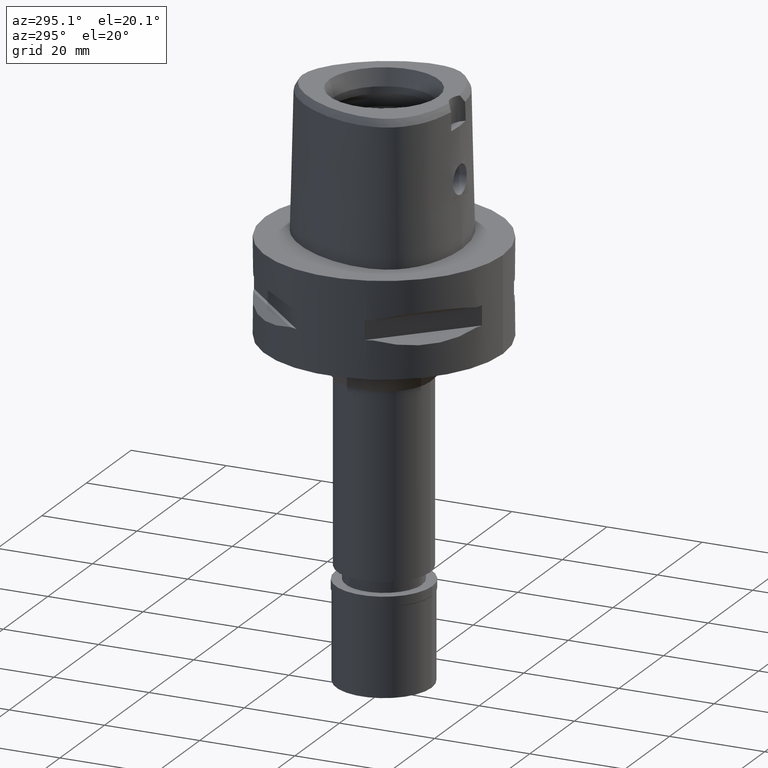
[diagram: clean part render]
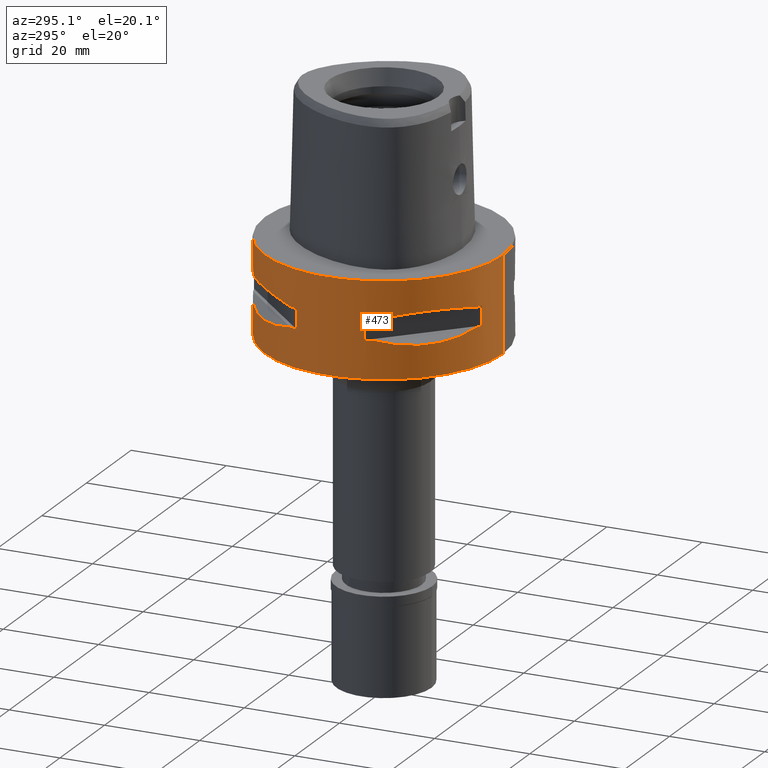
[diagram: same view with one face highlighted and labeled with its STEP entity id]
A machine part, auxiliary view. The second image highlights one B-rep face of the part: STEP entity #473.
In plain terms, the highlighted cylindrical surface (partial cylindrical patch) has radius 25 mm, axis along (0, 0, -1).
Its self-contained STEP definition (entity closure, byte-faithful):
#55 = EDGE_CURVE ( 'NONE', #2540, #2923, #4088, .T. ) ;
#127 = ORIENTED_EDGE ( 'NONE', *, *, #4684, .F. ) ;
#142 = CARTESIAN_POINT ( 'NONE',  ( -22.58788056562029922, -10.78455809745187111, -12.56798337782941744 ) ) ;
#151 = ORIENTED_EDGE ( 'NONE', *, *, #3380, .T. ) ;
#188 = CARTESIAN_POINT ( 'NONE',  ( -23.95277699797999915, 7.159921374235000080, -12.05000000000000071 ) ) ;
#189 = CARTESIAN_POINT ( 'NONE',  ( -16.07509500017260251, -19.18226349640280048, -13.33749867751863327 ) ) ;
#197 = CARTESIAN_POINT ( 'NONE',  ( -11.99631184318435828, 22.00754773654067264, -7.175632472871786405 ) ) ;
#222 = CARTESIAN_POINT ( 'NONE',  ( -7.159921374235000080, -23.95277699797999915, -12.05000000000000071 ) ) ;
#260 = CARTESIAN_POINT ( 'NONE',  ( -12.89853354822446718, 21.41803043592210543, -12.95342092614171570 ) ) ;
#264 = AXIS2_PLACEMENT_3D ( 'NONE', #4758, #1338, #3562 ) ;
#289 = DIRECTION ( 'NONE',  ( 0.0000000000000000000, 0.0000000000000000000, -1.000000000000000000 ) ) ;
#294 = FACE_BOUND ( 'NONE', #3579, .T. ) ;
#312 = DIRECTION ( 'NONE',  ( -0.2863968549694120291, -0.9581110799190402094, 0.0000000000000000000 ) ) ;
#328 = CARTESIAN_POINT ( 'NONE',  ( -23.45715880140000209, 8.646484890751999330, -7.949999999998999201 ) ) ;
#370 = DIRECTION ( 'NONE',  ( 0.0000000000000000000, -1.000000000000000000, 0.0000000000000000000 ) ) ;
#449 = VERTEX_POINT ( 'NONE', #690 ) ;
#473 = ADVANCED_FACE ( 'NONE', ( #3810, #294, #4857 ), #3409, .T. ) ;
#512 = CARTESIAN_POINT ( 'NONE',  ( -23.45715880140000209, -8.646484890756999775, -12.05000000000000071 ) ) ;
#519 = CARTESIAN_POINT ( 'NONE',  ( -14.22535762327708397, -20.56020460723788901, -13.14488865845220289 ) ) ;
#525 = CARTESIAN_POINT ( 'NONE',  ( -20.06074199769975763, 15.02698525043419231, -6.733118915137212390 ) ) ;
#529 = VERTEX_POINT ( 'NONE', #3304 ) ;
#582 = CARTESIAN_POINT ( 'NONE',  ( -13.41274673326554101, 21.09754014382029297, -13.03250796600789663 ) ) ;
#588 = CARTESIAN_POINT ( 'NONE',  ( -23.95277699797999915, 7.159921374230999724, -12.05000000000000071 ) ) ;
#591 = AXIS2_PLACEMENT_3D ( 'NONE', #2981, #3007, #2568 ) ;
#603 = CARTESIAN_POINT ( 'NONE',  ( 0.0000000000000000000, 1.274857317911999787E-14, -7.950000000000000178 ) ) ;
#609 = EDGE_CURVE ( 'NONE', #4574, #3774, #675, .T. ) ;
#628 = VERTEX_POINT ( 'NONE', #3708 ) ;
#629 = VERTEX_POINT ( 'NONE', #1084 ) ;
#638 = CARTESIAN_POINT ( 'NONE',  ( -13.24197703503622137, 21.20561591939551249, -13.00691327926188201 ) ) ;
#643 = EDGE_CURVE ( 'NONE', #449, #629, #3704, .T. ) ;
#675 = CIRCLE ( 'NONE', #591, 24.99999999999999645 ) ;
#683 = AXIS2_PLACEMENT_3D ( 'NONE', #3145, #1202, #2291 ) ;
#685 = CARTESIAN_POINT ( 'NONE',  ( -11.99636231264437747, -22.00752022556847720, -7.175618606703324964 ) ) ;
#690 = CARTESIAN_POINT ( 'NONE',  ( 0.0000000000000000000, -25.00000000000000000, 0.0000000000000000000 ) ) ;
#755 = DIRECTION ( 'NONE',  ( 0.0000000000000000000, 0.0000000000000000000, -1.000000000000000000 ) ) ;
#778 = CARTESIAN_POINT ( 'NONE',  ( 0.0000000000000000000, 1.274857317911999787E-14, -7.950000000000000178 ) ) ;
#820 = DIRECTION ( 'NONE',  ( -0.9382863520558295534, 0.3458593956303108730, 0.0000000000000000000 ) ) ;
#886 = CARTESIAN_POINT ( 'NONE',  ( -21.82791133048418786, -12.20403021317722292, -12.83722430138600323 ) ) ;
#890 = CARTESIAN_POINT ( 'NONE',  ( -16.42437865147239151, 18.93096040785500378, -6.622505547239577517 ) ) ;
#916 = CARTESIAN_POINT ( 'NONE',  ( -12.03062603421342125, -21.99328990740118428, -12.83394786307044555 ) ) ;
#958 = CARTESIAN_POINT ( 'NONE',  ( -7.159921374230999724, 23.95277699797999915, -12.05000000000000071 ) ) ;
#964 = CARTESIAN_POINT ( 'NONE',  ( -21.41803043592453548, -12.89853354821786446, -12.95342092614003171 ) ) ;
#984 = ORIENTED_EDGE ( 'NONE', *, *, #2564, .F. ) ;
#1033 = CARTESIAN_POINT ( 'NONE',  ( -23.45715880140000209, 8.646484890751999330, -12.05000000000000071 ) ) ;
#1056 = CIRCLE ( 'NONE', #2423, 25.00000000000001066 ) ;
#1083 = CARTESIAN_POINT ( 'NONE',  ( -13.48572973711170953, 21.05082155772122832, -13.04323036965318039 ) ) ;
#1084 = CARTESIAN_POINT ( 'NONE',  ( 0.0000000000000000000, 25.00000000000000000, 0.0000000000000000000 ) ) ;
#1131 = EDGE_CURVE ( 'NONE', #4690, #2923, #3139, .T. ) ;
#1140 = CIRCLE ( 'NONE', #264, 25.00000000000000000 ) ;
#1178 = DIRECTION ( 'NONE',  ( 0.0000000000000000000, 0.0000000000000000000, -1.000000000000000000 ) ) ;
#1202 = DIRECTION ( 'NONE',  ( 0.0000000000000000000, 0.0000000000000000000, 1.000000000000000000 ) ) ;
#1237 = CARTESIAN_POINT ( 'NONE',  ( -7.159921374230999724, -23.95277699797999915, -7.950000000000000178 ) ) ;
#1238 = DIRECTION ( 'NONE',  ( 0.0000000000000000000, 0.0000000000000000000, 1.000000000000000000 ) ) ;
#1248 = ORIENTED_EDGE ( 'NONE', *, *, #609, .T. ) ;
#1256 = DIRECTION ( 'NONE',  ( -0.3458593956303108730, -0.9382863520558295534, 0.0000000000000000000 ) ) ;
#1265 = CARTESIAN_POINT ( 'NONE',  ( -8.646484890751999330, 23.45715880140000209, -7.949999999998999201 ) ) ;
#1317 = CARTESIAN_POINT ( 'NONE',  ( -13.67544437571023153, -20.92801700160370970, -13.07054629644085786 ) ) ;
#1338 = DIRECTION ( 'NONE',  ( 0.0000000000000000000, 0.0000000000000000000, 1.000000000000000000 ) ) ;
#1368 = EDGE_CURVE ( 'NONE', #628, #2718, #2685, .T. ) ;
#1379 = VECTOR ( 'NONE', #1238, 1000.000000000000000 ) ;
#1393 = B_SPLINE_CURVE_WITH_KNOTS ( 'NONE', 3,
 ( #3325, #2583, #2507, #2533, #4108, #1407, #2483, #685, #4077, #4054 ),
 .UNSPECIFIED., .F., .F.,
 ( 4, 2, 2, 2, 4 ),
 ( 0.0000000000000000000, 0.2499999999999998335, 0.4999999999999996669, 0.7499999999999997780, 1.000000000000000000 ),
 .UNSPECIFIED. ) ;
#1407 = CARTESIAN_POINT ( 'NONE',  ( -16.42437865151179821, -18.93096040781555445, -6.622496303226937719 ) ) ;
#1414 = CARTESIAN_POINT ( 'NONE',  ( -20.97251445226615019, 13.60713573002994181, -13.06082541678091324 ) ) ;
#1439 = DIRECTION ( 'NONE',  ( 0.0000000000000000000, -1.000000000000000000, 0.0000000000000000000 ) ) ;
#1460 = CARTESIAN_POINT ( 'NONE',  ( -20.77616787492827655, 13.90573822668830140, -13.10257122103331362 ) ) ;
#1461 = EDGE_CURVE ( 'NONE', #3009, #529, #4267, .T. ) ;
#1488 = ORIENTED_EDGE ( 'NONE', *, *, #3081, .F. ) ;
#1513 = ORIENTED_EDGE ( 'NONE', *, *, #2448, .T. ) ;
#1591 = CARTESIAN_POINT ( 'NONE',  ( 0.0000000000000000000, 25.00000000000000000, -20.00000000000000000 ) ) ;
#1696 = CARTESIAN_POINT ( 'NONE',  ( -23.13678124605149833, -9.515641234297431694, -12.27403800212630891 ) ) ;
#1702 = EDGE_CURVE ( 'NONE', #628, #529, #4249, .T. ) ;
#1703 = ORIENTED_EDGE ( 'NONE', *, *, #2984, .T. ) ;
#1721 = CARTESIAN_POINT ( 'NONE',  ( -13.60713573003076249, -20.97251445226584110, -13.06082541678113174 ) ) ;
#1745 = CARTESIAN_POINT ( 'NONE',  ( -21.00321793043546847, -13.55971422200801157, -13.05400030967367364 ) ) ;
#1785 = CARTESIAN_POINT ( 'NONE',  ( -13.53433973752455621, 21.01958685664031989, -13.05032380590174235 ) ) ;
#1819 = CARTESIAN_POINT ( 'NONE',  ( -10.78455809746692928, 22.58788056561475344, -12.56798337783328634 ) ) ;
#1836 = VERTEX_POINT ( 'NONE', #1852 ) ;
#1852 = CARTESIAN_POINT ( 'NONE',  ( -8.646484890751999330, 23.45715880140000209, -7.949999999998999201 ) ) ;
#1859 = ORIENTED_EDGE ( 'NONE', *, *, #2539, .T. ) ;
#1866 = CARTESIAN_POINT ( 'NONE',  ( 0.0000000000000000000, 1.274857317911999787E-14, 4.100000000000000533 ) ) ;
#1869 = VECTOR ( 'NONE', #2170, 1000.000000000000000 ) ;
#1937 = CARTESIAN_POINT ( 'NONE',  ( 0.0000000000000000000, -25.00000000000000000, -20.00000000000000000 ) ) ;
#2023 = AXIS2_PLACEMENT_3D ( 'NONE', #2488, #755, #312 ) ;
#2033 = CIRCLE ( 'NONE', #4821, 24.99999999999999645 ) ;
#2046 = CARTESIAN_POINT ( 'NONE',  ( -10.38516041956038016, -22.81626994452193458, -12.49816953211165860 ) ) ;
#2063 = DIRECTION ( 'NONE',  ( 0.0000000000000000000, 0.0000000000000000000, 1.000000000000000000 ) ) ;
#2090 = CARTESIAN_POINT ( 'NONE',  ( -14.85488513037629943, -20.11654071403241417, -13.22076716108376360 ) ) ;
#2141 = CARTESIAN_POINT ( 'NONE',  ( -13.55971422200804888, 21.00321793043550755, -13.05400030967368785 ) ) ;
#2164 = CARTESIAN_POINT ( 'NONE',  ( -19.18226349636000805, 16.07509500021993887, -13.33749867752047358 ) ) ;
#2170 = DIRECTION ( 'NONE',  ( 0.0000000000000000000, 0.0000000000000000000, -1.000000000000000000 ) ) ;
#2235 = ORIENTED_EDGE ( 'NONE', *, *, #1368, .T. ) ;
#2244 = VERTEX_POINT ( 'NONE', #2687 ) ;
#2289 = VERTEX_POINT ( 'NONE', #222 ) ;
#2291 = DIRECTION ( 'NONE',  ( -0.9581110799190402094, -0.2863968549694120291, 0.0000000000000000000 ) ) ;
#2328 = CARTESIAN_POINT ( 'NONE',  ( -7.159921374235000080, 23.95277699797999915, -7.950000000000000178 ) ) ;
#2410 = EDGE_CURVE ( 'NONE', #1836, #4198, #4190, .T. ) ;
#2415 = EDGE_LOOP ( 'NONE', ( #4869, #3482, #4370, #1859 ) ) ;
#2420 = CARTESIAN_POINT ( 'NONE',  ( -21.09754014382098930, -13.41274673326371136, -13.03250796600744721 ) ) ;
#2423 = AXIS2_PLACEMENT_3D ( 'NONE', #778, #3040, #820 ) ;
#2427 = CARTESIAN_POINT ( 'NONE',  ( -22.00752022560863352, 11.99636231257077057, -7.175618606723545234 ) ) ;
#2448 = EDGE_CURVE ( 'NONE', #4198, #3266, #1056, .T. ) ;
#2454 = CARTESIAN_POINT ( 'NONE',  ( -13.90573822667720982, -20.77616787493829875, -13.10257122103289262 ) ) ;
#2472 = CARTESIAN_POINT ( 'NONE',  ( -23.45715880140000209, -8.646484890751999330, -7.949999999998999201 ) ) ;
#2483 = CARTESIAN_POINT ( 'NONE',  ( -15.02698525050127465, -20.06074199764947963, -6.733118915116993008 ) ) ;
#2488 = CARTESIAN_POINT ( 'NONE',  ( 0.0000000000000000000, 1.274857317911999787E-14, -12.05000000000000071 ) ) ;
#2494 = CARTESIAN_POINT ( 'NONE',  ( -7.159921374230999724, -23.95277699797999915, -12.05000000000000071 ) ) ;
#2507 = CARTESIAN_POINT ( 'NONE',  ( -22.00754773658078634, -11.99631184311072651, -7.175632472892017333 ) ) ;
#2512 = VECTOR ( 'NONE', #3310, 1000.000000000000000 ) ;
#2516 = CARTESIAN_POINT ( 'NONE',  ( 0.0000000000000000000, -25.00000000000000000, 0.0000000000000000000 ) ) ;
#2533 = CARTESIAN_POINT ( 'NONE',  ( -20.06077645874710669, -15.02693924547572557, -6.733132781305682713 ) ) ;
#2536 = DIRECTION ( 'NONE',  ( -0.3458593956303108730, 0.9382863520558295534, 0.0000000000000000000 ) ) ;
#2539 = EDGE_CURVE ( 'NONE', #629, #4880, #3516, .T. ) ;
#2540 = VERTEX_POINT ( 'NONE', #2328 ) ;
#2559 = EDGE_CURVE ( 'NONE', #3009, #2935, #3999, .T. ) ;
#2564 = EDGE_CURVE ( 'NONE', #2289, #4477, #3204, .T. ) ;
#2567 = EDGE_CURVE ( 'NONE', #4880, #3915, #1140, .T. ) ;
#2568 = DIRECTION ( 'NONE',  ( -0.9581110799190402094, 0.2863968549694120291, 0.0000000000000000000 ) ) ;
#2583 = CARTESIAN_POINT ( 'NONE',  ( -22.82438450745432235, -10.36314631860613389, -7.507504930525400688 ) ) ;
#2591 = CARTESIAN_POINT ( 'NONE',  ( -20.88268233905774807, 13.74471461762043312, -13.08031795579756640 ) ) ;
#2595 = AXIS2_PLACEMENT_3D ( 'NONE', #3783, #2621, #370 ) ;
#2620 = CARTESIAN_POINT ( 'NONE',  ( -8.646484890756999775, 23.45715880140000209, -12.05000000000000071 ) ) ;
#2621 = DIRECTION ( 'NONE',  ( 0.0000000000000000000, 0.0000000000000000000, -1.000000000000000000 ) ) ;
#2678 = CIRCLE ( 'NONE', #3466, 25.00000000000001066 ) ;
#2685 = CIRCLE ( 'NONE', #683, 24.99999999999999645 ) ;
#2687 = CARTESIAN_POINT ( 'NONE',  ( -8.646484890751999330, -23.45715880140000209, -7.949999999998999201 ) ) ;
#2706 = CARTESIAN_POINT ( 'NONE',  ( 0.0000000000000000000, 25.00000000000000000, 0.0000000000000000000 ) ) ;
#2718 = VERTEX_POINT ( 'NONE', #2472 ) ;
#2751 = VECTOR ( 'NONE', #3274, 1000.000000000000000 ) ;
#2794 = CARTESIAN_POINT ( 'NONE',  ( -18.93096040785499667, 16.42437865147239506, -6.622496303240421156 ) ) ;
#2844 = CARTESIAN_POINT ( 'NONE',  ( -15.02693924554285765, 20.06077645869683579, -6.733132781285451784 ) ) ;
#2860 = LINE ( 'NONE', #588, #2512 ) ;
#2861 = CARTESIAN_POINT ( 'NONE',  ( -13.74471461761470792, -20.88268233906292437, -13.08031795579734791 ) ) ;
#2869 = ORIENTED_EDGE ( 'NONE', *, *, #1702, .F. ) ;
#2906 = CARTESIAN_POINT ( 'NONE',  ( -18.30096971346383938, 17.05439749819285566, -13.37751056790111903 ) ) ;
#2923 = VERTEX_POINT ( 'NONE', #958 ) ;
#2932 = CARTESIAN_POINT ( 'NONE',  ( -16.43106916206558665, 18.92421359260760383, -13.37747608848198411 ) ) ;
#2935 = VERTEX_POINT ( 'NONE', #3601 ) ;
#2957 = DIRECTION ( 'NONE',  ( 0.0000000000000000000, 0.0000000000000000000, -1.000000000000000000 ) ) ;
#2979 = AXIS2_PLACEMENT_3D ( 'NONE', #1866, #2957, #1439 ) ;
#2981 = CARTESIAN_POINT ( 'NONE',  ( 0.0000000000000000000, 1.274857317911999787E-14, -12.05000000000000071 ) ) ;
#2984 = EDGE_CURVE ( 'NONE', #2244, #4477, #2678, .T. ) ;
#3003 = CARTESIAN_POINT ( 'NONE',  ( 0.0000000000000000000, 1.274857317911999787E-14, -12.05000000000000071 ) ) ;
#3007 = DIRECTION ( 'NONE',  ( 0.0000000000000000000, 0.0000000000000000000, -1.000000000000000000 ) ) ;
#3009 = VERTEX_POINT ( 'NONE', #512 ) ;
#3017 = EDGE_CURVE ( 'NONE', #449, #3915, #4434, .T. ) ;
#3040 = DIRECTION ( 'NONE',  ( 0.0000000000000000000, 0.0000000000000000000, 1.000000000000000000 ) ) ;
#3081 = EDGE_CURVE ( 'NONE', #4690, #3774, #3105, .T. ) ;
#3094 = CARTESIAN_POINT ( 'NONE',  ( -23.45715880140000209, -8.646484890756999775, -12.05000000000000071 ) ) ;
#3105 = B_SPLINE_CURVE_WITH_KNOTS ( 'NONE', 3,
 ( #2620, #4485, #1819, #3329, #260, #638, #582, #1083, #1785, #2141, #4038, #2932, #2906, #2164, #4856, #3302, #1460, #2591, #3706, #4832, #1414, #3734, #4459, #1033 ),
 .UNSPECIFIED., .F., .F.,
 ( 4, 1, 1, 1, 1, 1, 2, 2, 2, 1, 1, 1, 1, 1, 2, 2, 4 ),
 ( 0.0000000000000000000, 0.1250000000000042744, 0.1875000000000064115, 0.2187500000000075218, 0.2343750000000079659, 0.2421875000000081601, 0.2460937500000082989, 0.2500000000000084377, 0.5000000000000065503, 0.6250000000000055511, 0.6875000000000051070, 0.7187500000000047740, 0.7343750000000045519, 0.7421875000000042188, 0.7460937500000041078, 0.7500000000000039968, 1.000000000000000000 ),
 .UNSPECIFIED. ) ;
#3139 = CIRCLE ( 'NONE', #4589, 25.00000000000001066 ) ;
#3145 = CARTESIAN_POINT ( 'NONE',  ( 0.0000000000000000000, 1.274857317911999787E-14, -7.950000000000000178 ) ) ;
#3204 = LINE ( 'NONE', #2494, #1379 ) ;
#3208 = CARTESIAN_POINT ( 'NONE',  ( -10.36314631865845293, 22.82438450743504887, -7.507504930511911923 ) ) ;
#3234 = CARTESIAN_POINT ( 'NONE',  ( -8.646484890751999330, -23.45715880140000209, -12.05000000000000071 ) ) ;
#3258 = CARTESIAN_POINT ( 'NONE',  ( -18.92421359266165126, -16.43106916201666934, -13.37747608848409264 ) ) ;
#3266 = VERTEX_POINT ( 'NONE', #3833 ) ;
#3274 = DIRECTION ( 'NONE',  ( 0.0000000000000000000, 0.0000000000000000000, -1.000000000000000000 ) ) ;
#3277 = ORIENTED_EDGE ( 'NONE', *, *, #55, .F. ) ;
#3302 = CARTESIAN_POINT ( 'NONE',  ( -20.56020460721917331, 14.22535762329778386, -13.14488865845300047 ) ) ;
#3304 = CARTESIAN_POINT ( 'NONE',  ( -23.95277699797999915, -7.159921374230999724, -12.05000000000000071 ) ) ;
#3309 = VECTOR ( 'NONE', #1178, 1000.000000000000000 ) ;
#3310 = DIRECTION ( 'NONE',  ( 0.0000000000000000000, 0.0000000000000000000, 1.000000000000000000 ) ) ;
#3325 = CARTESIAN_POINT ( 'NONE',  ( -23.45715880140000209, -8.646484890751999330, -7.949999999998999201 ) ) ;
#3329 = CARTESIAN_POINT ( 'NONE',  ( -12.20403021318853476, 21.82791133048002763, -12.83722430138890225 ) ) ;
#3347 = EDGE_CURVE ( 'NONE', #2540, #1836, #2033, .T. ) ;
#3380 = EDGE_CURVE ( 'NONE', #2718, #2244, #1393, .T. ) ;
#3409 = CYLINDRICAL_SURFACE ( 'NONE', #2979, 25.00000000000000000 ) ;
#3449 = CARTESIAN_POINT ( 'NONE',  ( -23.95277699797999915, -7.159921374230999724, -7.950000000000000178 ) ) ;
#3450 = ORIENTED_EDGE ( 'NONE', *, *, #2559, .F. ) ;
#3466 = AXIS2_PLACEMENT_3D ( 'NONE', #4680, #2063, #1256 ) ;
#3478 = AXIS2_PLACEMENT_3D ( 'NONE', #4213, #3805, #4626 ) ;
#3482 = ORIENTED_EDGE ( 'NONE', *, *, #3017, .F. ) ;
#3516 = LINE ( 'NONE', #2706, #3854 ) ;
#3541 = CARTESIAN_POINT ( 'NONE',  ( -20.02826730454556170, -15.06560254766883666, -13.27075471794798744 ) ) ;
#3562 = DIRECTION ( 'NONE',  ( 0.0000000000000000000, 1.000000000000000000, 0.0000000000000000000 ) ) ;
#3579 = EDGE_LOOP ( 'NONE', ( #1513, #127, #1248, #1488, #4711, #3277, #4376, #4010 ) ) ;
#3601 = CARTESIAN_POINT ( 'NONE',  ( -8.646484890751999330, -23.45715880140000209, -12.05000000000000071 ) ) ;
#3606 = CARTESIAN_POINT ( 'NONE',  ( -21.05082155772163333, -13.48572973711064193, -13.04323036965292637 ) ) ;
#3641 = EDGE_LOOP ( 'NONE', ( #1703, #984, #3737, #3450, #4293, #2869, #2235, #151 ) ) ;
#3661 = CARTESIAN_POINT ( 'NONE',  ( -7.159921374230999724, 23.95277699797999915, -7.950000000000000178 ) ) ;
#3704 = CIRCLE ( 'NONE', #2595, 25.00000000000000000 ) ;
#3706 = CARTESIAN_POINT ( 'NONE',  ( -20.92801700160071476, 13.67544437571354266, -13.07054629644097687 ) ) ;
#3708 = CARTESIAN_POINT ( 'NONE',  ( -23.95277699797999915, -7.159921374235000080, -7.950000000000000178 ) ) ;
#3714 = CARTESIAN_POINT ( 'NONE',  ( -8.646484890756999775, 23.45715880140000209, -12.05000000000000071 ) ) ;
#3734 = CARTESIAN_POINT ( 'NONE',  ( -21.99328990738197120, 12.03062603426555199, -12.83394786308387481 ) ) ;
#3737 = ORIENTED_EDGE ( 'NONE', *, *, #3748, .T. ) ;
#3748 = EDGE_CURVE ( 'NONE', #2289, #2935, #3936, .T. ) ;
#3774 = VERTEX_POINT ( 'NONE', #4046 ) ;
#3783 = CARTESIAN_POINT ( 'NONE',  ( 0.0000000000000000000, 1.274857317911999787E-14, 0.0000000000000000000 ) ) ;
#3805 = DIRECTION ( 'NONE',  ( 0.0000000000000000000, 0.0000000000000000000, -1.000000000000000000 ) ) ;
#3810 = FACE_OUTER_BOUND ( 'NONE', #2415, .T. ) ;
#3833 = CARTESIAN_POINT ( 'NONE',  ( -23.95277699797999915, 7.159921374230999724, -7.950000000000000178 ) ) ;
#3854 = VECTOR ( 'NONE', #4228, 1000.000000000000000 ) ;
#3915 = VERTEX_POINT ( 'NONE', #1937 ) ;
#3936 = CIRCLE ( 'NONE', #2023, 24.99999999999999645 ) ;
#3938 = CARTESIAN_POINT ( 'NONE',  ( -17.05439749816580886, -18.30096971348830692, -13.37751056790007809 ) ) ;
#3946 = CARTESIAN_POINT ( 'NONE',  ( -22.82437128824117778, 10.36318218117757084, -7.507495686413086844 ) ) ;
#3999 = B_SPLINE_CURVE_WITH_KNOTS ( 'NONE', 3,
 ( #3094, #1696, #142, #886, #964, #4384, #2420, #3606, #4310, #1745, #3541, #3258, #3938, #189, #2090, #519, #2454, #2861, #1317, #4289, #1721, #916, #2046, #3234 ),
 .UNSPECIFIED., .F., .F.,
 ( 4, 1, 1, 1, 1, 1, 2, 2, 2, 1, 1, 1, 1, 1, 2, 2, 4 ),
 ( 0.0000000000000000000, 0.1249999999999980294, 0.1874999999999968636, 0.2187499999999962530, 0.2343749999999959754, 0.2421874999999957812, 0.2460937499999955869, 0.2499999999999953926, 0.5000000000000005551, 0.6250000000000031086, 0.6875000000000044409, 0.7187500000000051070, 0.7343750000000054401, 0.7421875000000055511, 0.7460937500000055511, 0.7500000000000055511, 1.000000000000000000 ),
 .UNSPECIFIED. ) ;
#4010 = ORIENTED_EDGE ( 'NONE', *, *, #2410, .T. ) ;
#4038 = CARTESIAN_POINT ( 'NONE',  ( -15.06560254766712248, 20.02826730454206228, -13.27075471794584693 ) ) ;
#4046 = CARTESIAN_POINT ( 'NONE',  ( -23.45715880140000209, 8.646484890751999330, -12.05000000000000071 ) ) ;
#4054 = CARTESIAN_POINT ( 'NONE',  ( -8.646484890751999330, -23.45715880140000209, -7.949999999998999201 ) ) ;
#4077 = CARTESIAN_POINT ( 'NONE',  ( -10.36318218122985790, -22.82437128822188299, -7.507495686399604296 ) ) ;
#4088 = LINE ( 'NONE', #3661, #1869 ) ;
#4108 = CARTESIAN_POINT ( 'NONE',  ( -18.93096040781556511, -16.42437865151180176, -6.622505547253058289 ) ) ;
#4190 = B_SPLINE_CURVE_WITH_KNOTS ( 'NONE', 3,
 ( #1265, #3208, #197, #2844, #890, #2794, #525, #2427, #3946, #4368 ),
 .UNSPECIFIED., .F., .F.,
 ( 4, 2, 2, 2, 4 ),
 ( 0.0000000000000000000, 0.2500000000000000000, 0.5000000000000000000, 0.7500000000000000000, 1.000000000000000000 ),
 .UNSPECIFIED. ) ;
#4198 = VERTEX_POINT ( 'NONE', #328 ) ;
#4213 = CARTESIAN_POINT ( 'NONE',  ( 0.0000000000000000000, 1.274857317911999787E-14, -12.05000000000000071 ) ) ;
#4228 = DIRECTION ( 'NONE',  ( 0.0000000000000000000, 0.0000000000000000000, -1.000000000000000000 ) ) ;
#4249 = LINE ( 'NONE', #3449, #3309 ) ;
#4267 = CIRCLE ( 'NONE', #3478, 25.00000000000001066 ) ;
#4289 = CARTESIAN_POINT ( 'NONE',  ( -13.62920640916616577, -20.95817024473919687, -13.06397973560672554 ) ) ;
#4293 = ORIENTED_EDGE ( 'NONE', *, *, #1461, .T. ) ;
#4310 = CARTESIAN_POINT ( 'NONE',  ( -21.01958685664054372, -13.53433973752400377, -13.05032380590162511 ) ) ;
#4368 = CARTESIAN_POINT ( 'NONE',  ( -23.45715880140000209, 8.646484890751999330, -7.949999999998999201 ) ) ;
#4370 = ORIENTED_EDGE ( 'NONE', *, *, #643, .T. ) ;
#4372 = DIRECTION ( 'NONE',  ( -0.2863968549694120291, 0.9581110799190402094, 0.0000000000000000000 ) ) ;
#4376 = ORIENTED_EDGE ( 'NONE', *, *, #3347, .T. ) ;
#4384 = CARTESIAN_POINT ( 'NONE',  ( -21.20561591939681989, -13.24197703503267753, -13.00691327926098140 ) ) ;
#4434 = LINE ( 'NONE', #2516, #2751 ) ;
#4459 = CARTESIAN_POINT ( 'NONE',  ( -22.81626994450270374, 10.38516041961251268, -12.49816953212508608 ) ) ;
#4477 = VERTEX_POINT ( 'NONE', #1237 ) ;
#4485 = CARTESIAN_POINT ( 'NONE',  ( -9.515641234306031038, 23.13678124604833286, -12.27403800212850093 ) ) ;
#4574 = VERTEX_POINT ( 'NONE', #188 ) ;
#4589 = AXIS2_PLACEMENT_3D ( 'NONE', #3003, #289, #2536 ) ;
#4626 = DIRECTION ( 'NONE',  ( -0.9382863520558295534, -0.3458593956303108730, 0.0000000000000000000 ) ) ;
#4680 = CARTESIAN_POINT ( 'NONE',  ( 0.0000000000000000000, 1.274857317911999787E-14, -7.950000000000000178 ) ) ;
#4684 = EDGE_CURVE ( 'NONE', #4574, #3266, #2860, .T. ) ;
#4690 = VERTEX_POINT ( 'NONE', #3714 ) ;
#4711 = ORIENTED_EDGE ( 'NONE', *, *, #1131, .T. ) ;
#4758 = CARTESIAN_POINT ( 'NONE',  ( 0.0000000000000000000, 1.274857317911999787E-14, -20.00000000000000000 ) ) ;
#4821 = AXIS2_PLACEMENT_3D ( 'NONE', #603, #4852, #4372 ) ;
#4832 = CARTESIAN_POINT ( 'NONE',  ( -20.95817024473767987, 13.62920640916783555, -13.06397973560677883 ) ) ;
#4852 = DIRECTION ( 'NONE',  ( 0.0000000000000000000, 0.0000000000000000000, 1.000000000000000000 ) ) ;
#4856 = CARTESIAN_POINT ( 'NONE',  ( -20.11654071400031540, 14.85488513041178749, -13.22076716108514027 ) ) ;
#4857 = FACE_BOUND ( 'NONE', #3641, .T. ) ;
#4869 = ORIENTED_EDGE ( 'NONE', *, *, #2567, .T. ) ;
#4880 = VERTEX_POINT ( 'NONE', #1591 ) ;